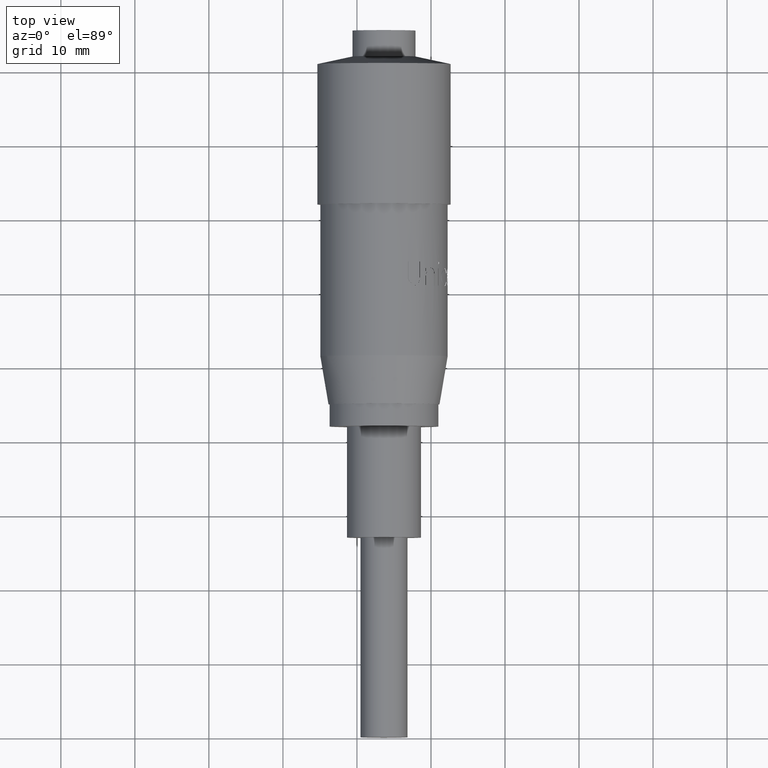
[diagram: clean part render]
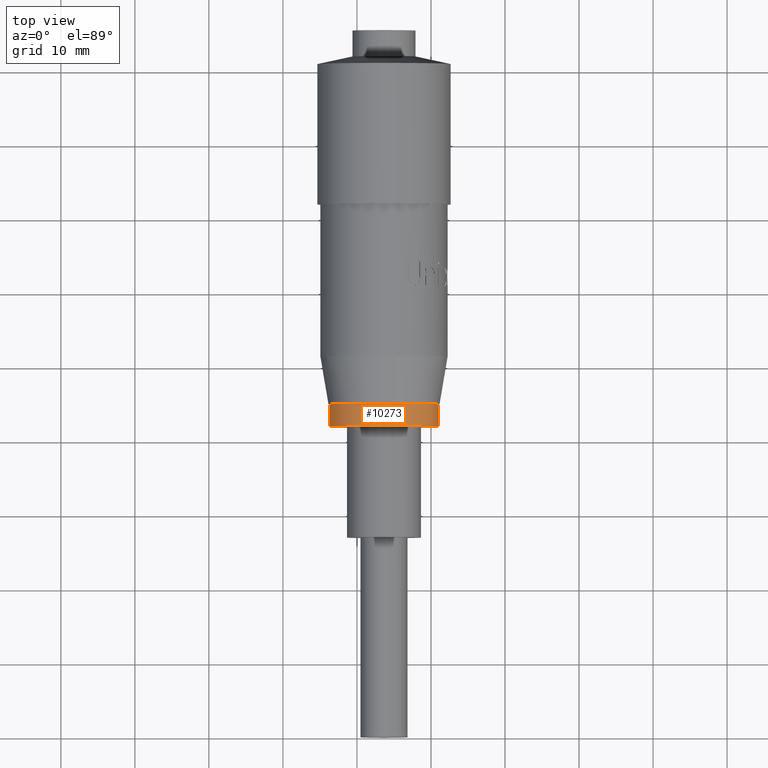
[diagram: same view with one face highlighted and labeled with its STEP entity id]
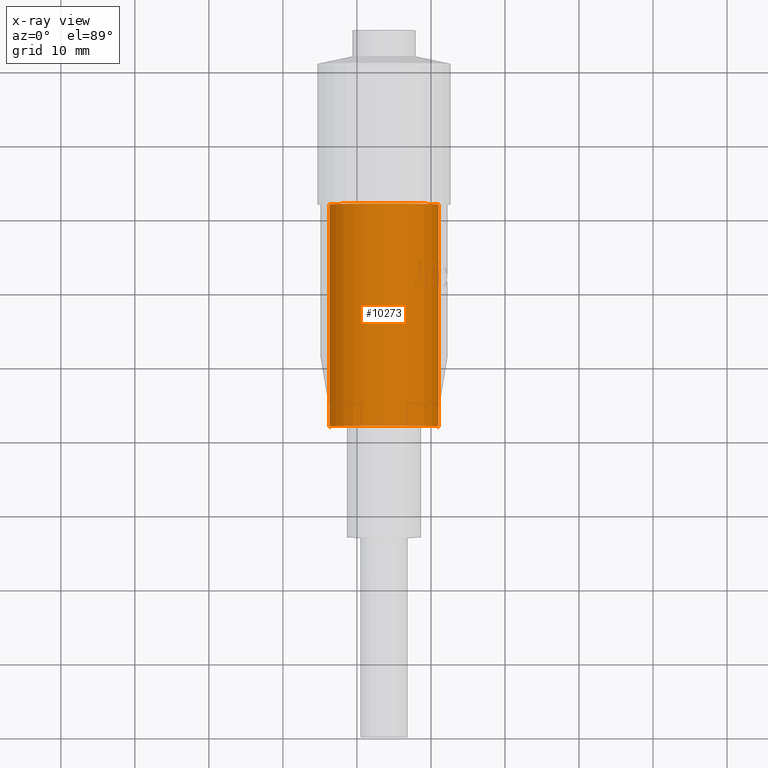
[diagram: x-ray of the same camera — body ghosted, the highlighted face saturated]
A machine part, top view. The second image highlights one B-rep face of the part: STEP entity #10273.
The next image is the same camera in x-ray: the body ghosted, the highlighted face saturated — about 0% of this face is hidden behind the body in this view.
In plain terms, the highlighted cylindrical surface (partial cylindrical patch) has radius 7.35 mm, axis along (-0, 1, -0).
Its self-contained STEP definition (entity closure, byte-faithful):
#132 = DIRECTION ( 'NONE',  ( -1.538829532431126300E-013, 0.0000000000000000000, 1.000000000000000000 ) ) ;
#194 = FACE_OUTER_BOUND ( 'NONE', #5819, .T. ) ;
#204 = EDGE_CURVE ( 'NONE', #4153, #7621, #10088, .T. ) ;
#383 = CIRCLE ( 'NONE', #8015, 7.349999999999998800 ) ;
#658 = CARTESIAN_POINT ( 'NONE',  ( 41.00296289245996200, 42.02618278390013300, 28.87709965591409000 ) ) ;
#917 = EDGE_CURVE ( 'NONE', #7621, #2881, #941, .T. ) ;
#941 = CIRCLE ( 'NONE', #7723, 7.350000000000002300 ) ;
#1244 = VERTEX_POINT ( 'NONE', #2830 ) ;
#1638 = CARTESIAN_POINT ( 'NONE',  ( 41.00296289245996900, 14.92618278390013100, 28.87709965591409000 ) ) ;
#1705 = VERTEX_POINT ( 'NONE', #1638 ) ;
#2111 = CARTESIAN_POINT ( 'NONE',  ( 33.65296289245996100, 68.06720585310775100, 28.87709965591409000 ) ) ;
#2197 = EDGE_CURVE ( 'NONE', #1244, #10958, #9899, .T. ) ;
#2446 = EDGE_CURVE ( 'NONE', #10958, #1705, #383, .T. ) ;
#2447 = CARTESIAN_POINT ( 'NONE',  ( 26.30296289245997000, 12.02618278390013300, 28.87709965591409000 ) ) ;
#2455 = CARTESIAN_POINT ( 'NONE',  ( 41.00228258886724600, 14.92618278390013100, 28.97709965591408800 ) ) ;
#2485 = CARTESIAN_POINT ( 'NONE',  ( 41.00228258886723900, 68.06720585310775100, 28.97709965591409500 ) ) ;
#2500 = ORIENTED_EDGE ( 'NONE', *, *, #8429, .F. ) ;
#2506 = DIRECTION ( 'NONE',  ( -1.058937486943297600E-016, 1.000000000000000000, -0.0000000000000000000 ) ) ;
#2830 = CARTESIAN_POINT ( 'NONE',  ( 41.00228258886724600, 39.67618278390013100, 28.97709965591409200 ) ) ;
#2881 = VERTEX_POINT ( 'NONE', #658 ) ;
#3031 = VECTOR ( 'NONE', #2506, 1000.000000000000000 ) ;
#3066 = EDGE_CURVE ( 'NONE', #8901, #2881, #6302, .T. ) ;
#3074 = ORIENTED_EDGE ( 'NONE', *, *, #204, .F. ) ;
#3360 = ORIENTED_EDGE ( 'NONE', *, *, #2446, .F. ) ;
#3441 = AXIS2_PLACEMENT_3D ( 'NONE', #9241, #3944, #10137 ) ;
#3757 = DIRECTION ( 'NONE',  ( -1.058937486943297600E-016, 1.000000000000000000, -0.0000000000000000000 ) ) ;
#3944 = DIRECTION ( 'NONE',  ( -1.058937486943297600E-016, 1.000000000000000000, -0.0000000000000000000 ) ) ;
#4089 = CARTESIAN_POINT ( 'NONE',  ( 33.65296289245996100, 42.02618278390013300, 28.87709965591409000 ) ) ;
#4153 = VERTEX_POINT ( 'NONE', #2447 ) ;
#4166 = ORIENTED_EDGE ( 'NONE', *, *, #917, .F. ) ;
#4637 = CARTESIAN_POINT ( 'NONE',  ( 33.65296289245996800, 14.92618278390013100, 28.87709965591409000 ) ) ;
#4979 = DIRECTION ( 'NONE',  ( -1.000000000000000000, 0.0000000000000000000, 0.0000000000000000000 ) ) ;
#5001 = ORIENTED_EDGE ( 'NONE', *, *, #11355, .T. ) ;
#5030 = ORIENTED_EDGE ( 'NONE', *, *, #8710, .T. ) ;
#5070 = VECTOR ( 'NONE', #7288, 1000.000000000000000 ) ;
#5160 = DIRECTION ( 'NONE',  ( 1.058937486943297600E-016, -1.000000000000000000, 0.0000000000000000000 ) ) ;
#5222 = AXIS2_PLACEMENT_3D ( 'NONE', #10719, #5426, #132 ) ;
#5372 = CARTESIAN_POINT ( 'NONE',  ( 41.00296289245996200, 39.67618278390013100, 28.87709965591409000 ) ) ;
#5426 = DIRECTION ( 'NONE',  ( -0.0000000000000000000, -1.000000000000000000, -0.0000000000000000000 ) ) ;
#5536 = DIRECTION ( 'NONE',  ( 7.646944302265110700E-014, 0.0000000000000000000, -1.000000000000000000 ) ) ;
#5701 = CARTESIAN_POINT ( 'NONE',  ( 41.00296289245996200, 68.06720585310775100, 28.87709965591409000 ) ) ;
#5819 = EDGE_LOOP ( 'NONE', ( #5001, #5030, #3360, #7753, #2500, #9883, #4166, #3074 ) ) ;
#6146 = CYLINDRICAL_SURFACE ( 'NONE', #6480, 7.349999999999998800 ) ;
#6302 = LINE ( 'NONE', #6406, #5070 ) ;
#6406 = CARTESIAN_POINT ( 'NONE',  ( 41.00296289245996200, 68.06720585310775100, 28.87709965591409000 ) ) ;
#6480 = AXIS2_PLACEMENT_3D ( 'NONE', #2111, #3757, #6721 ) ;
#6721 = DIRECTION ( 'NONE',  ( -1.000000000000000000, 0.0000000000000000000, 0.0000000000000000000 ) ) ;
#6948 = CARTESIAN_POINT ( 'NONE',  ( 26.30296289245995900, 42.02618278390013300, 28.87709965591409000 ) ) ;
#7064 = VERTEX_POINT ( 'NONE', #7466 ) ;
#7279 = VECTOR ( 'NONE', #5160, 1000.000000000000000 ) ;
#7288 = DIRECTION ( 'NONE',  ( -1.058937486943297600E-016, 1.000000000000000000, -0.0000000000000000000 ) ) ;
#7466 = CARTESIAN_POINT ( 'NONE',  ( 41.00296289245996900, 12.02618278390013300, 28.87709965591409000 ) ) ;
#7621 = VERTEX_POINT ( 'NONE', #6948 ) ;
#7654 = CIRCLE ( 'NONE', #5222, 7.350000000000002300 ) ;
#7723 = AXIS2_PLACEMENT_3D ( 'NONE', #4089, #10272, #4979 ) ;
#7753 = ORIENTED_EDGE ( 'NONE', *, *, #2197, .F. ) ;
#8015 = AXIS2_PLACEMENT_3D ( 'NONE', #4637, #10843, #5536 ) ;
#8429 = EDGE_CURVE ( 'NONE', #8901, #1244, #7654, .T. ) ;
#8710 = EDGE_CURVE ( 'NONE', #7064, #1705, #9302, .T. ) ;
#8901 = VERTEX_POINT ( 'NONE', #5372 ) ;
#8995 = CIRCLE ( 'NONE', #3441, 7.349999999999998800 ) ;
#9241 = CARTESIAN_POINT ( 'NONE',  ( 33.65296289245996800, 12.02618278390013300, 28.87709965591409000 ) ) ;
#9302 = LINE ( 'NONE', #5701, #9571 ) ;
#9569 = CARTESIAN_POINT ( 'NONE',  ( 26.30296289245996300, 68.06720585310775100, 28.87709965591409000 ) ) ;
#9571 = VECTOR ( 'NONE', #11005, 1000.000000000000000 ) ;
#9883 = ORIENTED_EDGE ( 'NONE', *, *, #3066, .T. ) ;
#9899 = LINE ( 'NONE', #2485, #7279 ) ;
#10088 = LINE ( 'NONE', #9569, #3031 ) ;
#10137 = DIRECTION ( 'NONE',  ( -1.000000000000000000, 0.0000000000000000000, 0.0000000000000000000 ) ) ;
#10272 = DIRECTION ( 'NONE',  ( -1.058937486943297600E-016, 1.000000000000000000, -0.0000000000000000000 ) ) ;
#10273 = ADVANCED_FACE ( 'NONE', ( #194 ), #6146, .T. ) ;
#10719 = CARTESIAN_POINT ( 'NONE',  ( 33.65296289245996100, 39.67618278390013100, 28.87709965591409000 ) ) ;
#10843 = DIRECTION ( 'NONE',  ( -0.0000000000000000000, 1.000000000000000000, 0.0000000000000000000 ) ) ;
#10958 = VERTEX_POINT ( 'NONE', #2455 ) ;
#11005 = DIRECTION ( 'NONE',  ( -1.058937486943297600E-016, 1.000000000000000000, -0.0000000000000000000 ) ) ;
#11355 = EDGE_CURVE ( 'NONE', #4153, #7064, #8995, .T. ) ;